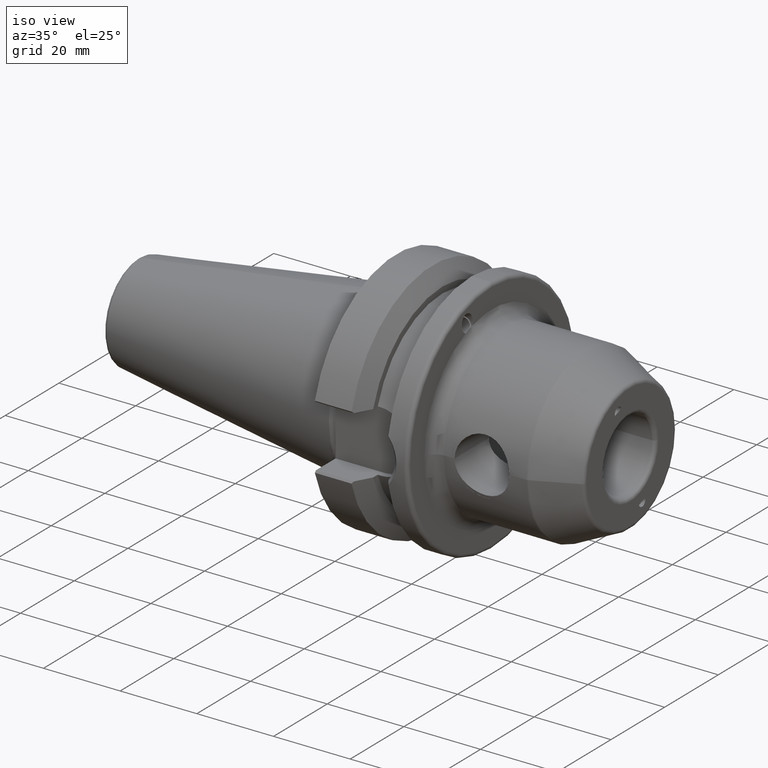
[diagram: clean part render]
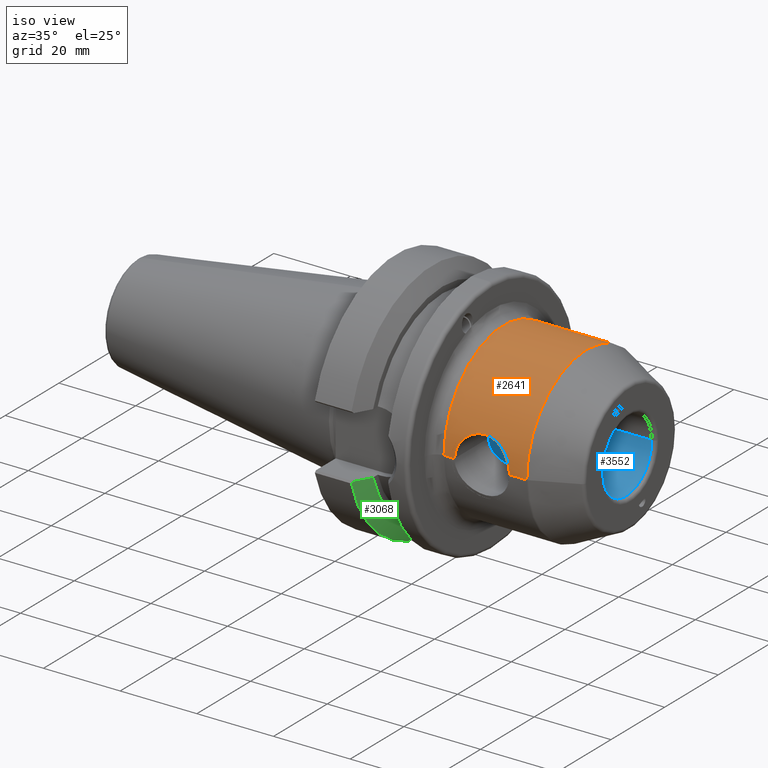
[diagram: same view with three faces highlighted in distinct colors, each labeled with its STEP entity id]
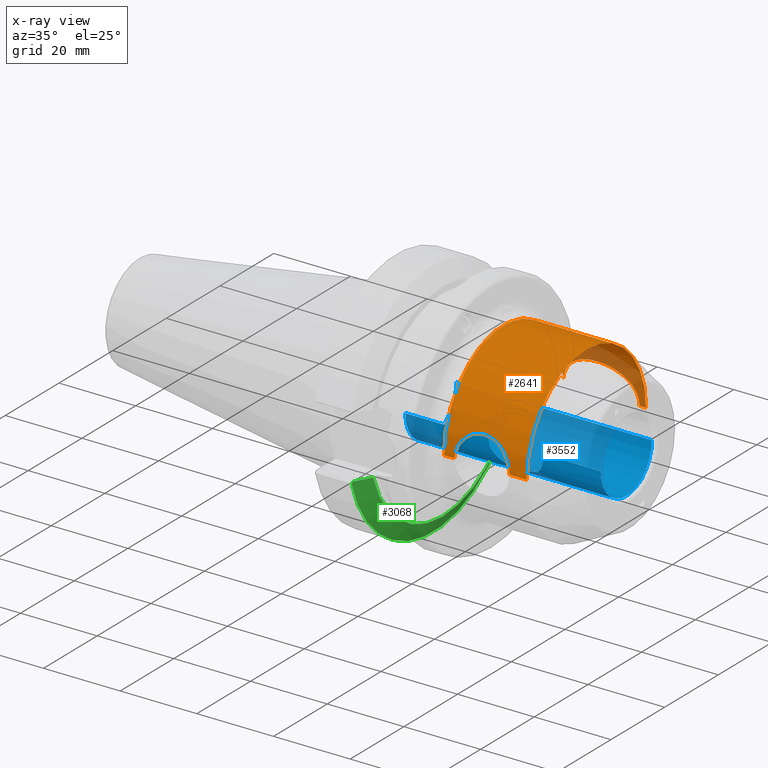
[diagram: x-ray of the same camera — body ghosted, the three highlighted faces saturated]
A machine part, iso view with three faces highlighted in distinct colors.
The next image is the same camera in x-ray (body ghosted, the three faces saturated) — at least one of them is partly hidden behind the body in this view.
Their STEP definitions:

[orange] entity #2641 — the highlighted cylindrical surface (partial cylindrical patch) has radius 22.225 mm, axis along (-1, 0, 0).
#307=CARTESIAN_POINT('',(4.99E1,2.2225E1,0.E0));
#308=CARTESIAN_POINT('',(4.99E1,2.2225E1,3.630115564108E-1));
#309=CARTESIAN_POINT('',(4.985008308141E1,2.220810348539E1,1.095261380611E0));
#310=CARTESIAN_POINT('',(4.957885241600E1,2.211801236820E1,2.276243612510E0));
#311=CARTESIAN_POINT('',(4.915081259436E1,2.198102849458E1,3.336138704336E0));
#312=CARTESIAN_POINT('',(4.858722862228E1,2.181015249122E1,4.309055189650E0));
#313=CARTESIAN_POINT('',(4.789596621731E1,2.161519115039E1,5.194800210705E0));
#314=CARTESIAN_POINT('',(4.707038845970E1,2.140318550125E1,6.005949479731E0));
#315=CARTESIAN_POINT('',(4.609775756960E1,2.118315299958E1,6.737144840002E0));
#316=CARTESIAN_POINT('',(4.504486960430E1,2.098172880978E1,7.336375902990E0));
#317=CARTESIAN_POINT('',(4.393610505537E1,2.080921122913E1,7.809919920117E0));
#318=CARTESIAN_POINT('',(4.268043976762E1,2.066311083412E1,8.187042703047E0));
#319=CARTESIAN_POINT('',(4.121064035787E1,2.055616612386E1,8.450098904092E0));
#320=CARTESIAN_POINT('',(3.943147990575E1,2.052970486322E1,8.513532788728E0));
#321=CARTESIAN_POINT('',(3.783727622736E1,2.060183454173E1,8.339138451317E0));
#322=CARTESIAN_POINT('',(3.638508446645E1,2.074006335651E1,7.991680881893E0));
#323=CARTESIAN_POINT('',(3.507856306305E1,2.092512457864E1,7.497447659871E0));
#324=CARTESIAN_POINT('',(3.387359013477E1,2.114661283465E1,6.852489932682E0));
#325=CARTESIAN_POINT('',(3.283264315147E1,2.137809109909E1,6.095457198134E0));
#326=CARTESIAN_POINT('',(3.197652076409E1,2.159562239144E1,5.275682311275E0));
#327=CARTESIAN_POINT('',(3.127396986170E1,2.179226927571E1,4.397407747677E0));
#328=CARTESIAN_POINT('',(3.069885677167E1,2.196552788324E1,3.437351008359E0));
#329=CARTESIAN_POINT('',(3.025512540069E1,2.210691226248E1,2.375959674534E0));
#330=CARTESIAN_POINT('',(3.006524983006E1,2.216979484213E1,1.614844183372E0));
#331=CARTESIAN_POINT('',(3.E1,2.219152649285E1,1.219334620643E0));
#333=CARTESIAN_POINT('',(5.157325667769E1,0.E0,0.E0));
#334=DIRECTION('',(-1.E0,0.E0,0.E0));
#335=DIRECTION('',(0.E0,-1.E0,0.E0));
#336=AXIS2_PLACEMENT_3D('',#333,#334,#335);
#338=CARTESIAN_POINT('',(3.27626E1,-2.2225E1,0.E0));
#339=CARTESIAN_POINT('',(3.27626E1,-2.2225E1,4.466968018885E-1));
#340=CARTESIAN_POINT('',(3.284157082150E1,-2.219935032889E1,1.338483239756E0));
#341=CARTESIAN_POINT('',(3.325966043985E1,-2.206839874779E1,2.747580334973E0));
#342=CARTESIAN_POINT('',(3.392199030136E1,-2.187613401643E1,3.978975734801E0));
#343=CARTESIAN_POINT('',(3.478939749671E1,-2.165260183359E1,5.044764904094E0));
#344=CARTESIAN_POINT('',(3.583977176219E1,-2.142636472118E1,5.922844555021E0));
#345=CARTESIAN_POINT('',(3.707104126383E1,-2.122260888923E1,6.608360030813E0));
#346=CARTESIAN_POINT('',(3.851977771625E1,-2.107655263822E1,7.053817233986E0));
#347=CARTESIAN_POINT('',(3.991911535915E1,-2.103221077188E1,7.182657838593E0));
#348=CARTESIAN_POINT('',(4.133583880822E1,-2.108122553410E1,7.039747735358E0));
#349=CARTESIAN_POINT('',(4.268601439935E1,-2.121843710153E1,6.620865917171E0));
#350=CARTESIAN_POINT('',(4.390997704665E1,-2.141659732197E1,5.957231022532E0));
#351=CARTESIAN_POINT('',(4.496300204710E1,-2.164133431245E1,5.092417510463E0));
#352=CARTESIAN_POINT('',(4.584917639589E1,-2.186800786844E1,4.024621933141E0));
#353=CARTESIAN_POINT('',(4.652948040957E1,-2.206504605201E1,2.776713904560E0));
#354=CARTESIAN_POINT('',(4.695577312882E1,-2.219848932077E1,1.357060600706E0));
#355=CARTESIAN_POINT('',(4.70374E1,-2.2225E1,4.532035747091E-1));
#356=CARTESIAN_POINT('',(4.70374E1,-2.2225E1,0.E0));
#384=DIRECTION('',(-1.E0,0.E0,0.E0));
#385=VECTOR('',#384,2.762599999999E0);
#386=CARTESIAN_POINT('',(3.27626E1,-2.2225E1,0.E0));
#387=LINE('',#386,#385);
#408=DIRECTION('',(-1.E0,0.E0,0.E0));
#409=VECTOR('',#408,4.535856677695E0);
#410=CARTESIAN_POINT('',(5.157325667769E1,-2.2225E1,0.E0));
#411=LINE('',#410,#409);
#417=DIRECTION('',(-1.E0,0.E0,0.E0));
#418=VECTOR('',#417,1.673256677695E0);
#419=CARTESIAN_POINT('',(5.157325667769E1,2.2225E1,0.E0));
#420=LINE('',#419,#418);
#448=CARTESIAN_POINT('',(3.E1,0.E0,0.E0));
#449=DIRECTION('',(-1.E0,0.E0,0.E0));
#450=DIRECTION('',(0.E0,-1.E0,0.E0));
#451=AXIS2_PLACEMENT_3D('',#448,#449,#450);
#2092=CARTESIAN_POINT('',(5.157325667769E1,-2.2225E1,0.E0));
#2093=VERTEX_POINT('',#2092);
#2108=CARTESIAN_POINT('',(5.157325667769E1,2.2225E1,0.E0));
#2109=VERTEX_POINT('',#2108);
#2124=CARTESIAN_POINT('',(3.E1,-2.2225E1,0.E0));
#2125=VERTEX_POINT('',#2124);
#2146=VERTEX_POINT('',#338);
#2147=VERTEX_POINT('',#356);
#2154=VERTEX_POINT('',#307);
#2155=VERTEX_POINT('',#331);
#2621=CARTESIAN_POINT('',(0.E0,0.E0,0.E0));
#2622=DIRECTION('',(-1.E0,0.E0,0.E0));
#2623=DIRECTION('',(0.E0,-1.E0,0.E0));
#2624=AXIS2_PLACEMENT_3D('',#2621,#2622,#2623);
#2625=CYLINDRICAL_SURFACE('',#2624,2.2225E1);
#2627=ORIENTED_EDGE('',*,*,#2626,.F.);
#2629=ORIENTED_EDGE('',*,*,#2628,.F.);
#2631=ORIENTED_EDGE('',*,*,#2630,.F.);
#2633=ORIENTED_EDGE('',*,*,#2632,.T.);
#2634=ORIENTED_EDGE('',*,*,#2609,.F.);
#2636=ORIENTED_EDGE('',*,*,#2635,.T.);
#2638=ORIENTED_EDGE('',*,*,#2637,.T.);
#2639=EDGE_LOOP('',(#2627,#2629,#2631,#2633,#2634,#2636,#2638));
#2640=FACE_OUTER_BOUND('',#2639,.F.);
#2641=ADVANCED_FACE('',(#2640),#2625,.T.);
#332=B_SPLINE_CURVE_WITH_KNOTS('',3,(#307,#308,#309,#310,#311,#312,#313,#314,
#315,#316,#317,#318,#319,#320,#321,#322,#323,#324,#325,#326,#327,#328,#329,#330,
#331),.UNSPECIFIED.,.F.,.F.,(4,1,1,1,1,1,1,1,1,1,1,1,1,1,1,1,1,1,1,1,1,1,4),(
0.E0,4.545454545455E-2,9.090909090909E-2,1.363636363636E-1,1.818181818182E-1,
2.272727272727E-1,2.727272727273E-1,3.181818181818E-1,3.636363636364E-1,
4.090909090909E-1,4.545454545455E-1,5.E-1,5.454545454545E-1,5.909090909091E-1,
6.363636363636E-1,6.818181818182E-1,7.272727272727E-1,7.727272727273E-1,
8.181818181818E-1,8.636363636364E-1,9.090909090909E-1,9.545454545455E-1,1.E0),
.UNSPECIFIED.);
#337=CIRCLE('',#336,2.2225E1);
#357=B_SPLINE_CURVE_WITH_KNOTS('',3,(#338,#339,#340,#341,#342,#343,#344,#345,
#346,#347,#348,#349,#350,#351,#352,#353,#354,#355,#356),.UNSPECIFIED.,.F.,.F.,
(4,1,1,1,1,1,1,1,1,1,1,1,1,1,1,1,4),(0.E0,6.25E-2,1.25E-1,1.875E-1,2.5E-1,
3.125E-1,3.75E-1,4.375E-1,5.E-1,5.625E-1,6.25E-1,6.875E-1,7.5E-1,8.125E-1,
8.75E-1,9.375E-1,1.E0),.UNSPECIFIED.);
#452=CIRCLE('',#451,2.2225E1);
#2609=EDGE_CURVE('',#2146,#2147,#357,.T.);
#2626=EDGE_CURVE('',#2154,#2155,#332,.T.);
#2628=EDGE_CURVE('',#2109,#2154,#420,.T.);
#2630=EDGE_CURVE('',#2093,#2109,#337,.T.);
#2632=EDGE_CURVE('',#2093,#2147,#411,.T.);
#2635=EDGE_CURVE('',#2146,#2125,#387,.T.);
#2637=EDGE_CURVE('',#2125,#2155,#452,.T.);

[blue] entity #3552 — the highlighted cylindrical surface (partial cylindrical patch) has radius 9.525 mm, axis along (-1, 0, 0).
#257=CARTESIAN_POINT('',(4.70374E1,-9.525E0,0.E0));
#267=DIRECTION('',(1.E0,0.E0,0.E0));
#268=VECTOR('',#267,1.49626E1);
#269=CARTESIAN_POINT('',(4.70374E1,-9.525E0,0.E0));
#270=LINE('',#269,#268);
#271=DIRECTION('',(-1.E0,0.E0,0.E0));
#272=VECTOR('',#271,5.1E1);
#273=CARTESIAN_POINT('',(6.2E1,9.525E0,0.E0));
#274=LINE('',#273,#272);
#280=DIRECTION('',(1.E0,0.E0,0.E0));
#281=VECTOR('',#280,2.17626E1);
#282=CARTESIAN_POINT('',(1.1E1,-9.525E0,0.E0));
#283=LINE('',#282,#281);
#292=CARTESIAN_POINT('',(3.27626E1,-9.525E0,0.E0));
#1294=CARTESIAN_POINT('',(6.2E1,0.E0,0.E0));
#1295=DIRECTION('',(1.E0,0.E0,0.E0));
#1296=DIRECTION('',(0.E0,-1.E0,0.E0));
#1297=AXIS2_PLACEMENT_3D('',#1294,#1295,#1296);
#1304=CARTESIAN_POINT('',(3.579604108695E1,-7.525E0,-5.839520528263E0));
#1305=CARTESIAN_POINT('',(3.625710284708E1,-7.427483263276E0,
-5.965183832347E0));
#1306=CARTESIAN_POINT('',(3.714759499650E1,-7.266637252055E0,
-6.160243386278E0));
#1307=CARTESIAN_POINT('',(3.837939784030E1,-7.123462316826E0,
-6.323620470374E0));
#1308=CARTESIAN_POINT('',(3.948873028435E1,-7.065181275222E0,
-6.388169414692E0));
#1309=CARTESIAN_POINT('',(4.054578929572E1,-7.071535402653E0,
-6.381173034018E0));
#1310=CARTESIAN_POINT('',(4.169706816990E1,-7.148607357772E0,
-6.295493939738E0));
#1311=CARTESIAN_POINT('',(4.289352551248E1,-7.306764206635E0,
-6.112666511047E0));
#1312=CARTESIAN_POINT('',(4.363751485574E1,-7.447495353658E0,
-5.939395588363E0));
#1313=CARTESIAN_POINT('',(4.400395891305E1,-7.525E0,-5.839520528263E0));
#1315=CARTESIAN_POINT('',(3.27626E1,-9.525E0,0.E0));
#1316=CARTESIAN_POINT('',(3.27626E1,-9.525E0,-3.842456551466E-1));
#1317=CARTESIAN_POINT('',(3.282218495341E1,-9.480172808902E0,
-1.153232652006E0));
#1318=CARTESIAN_POINT('',(3.312263931551E1,-9.257083809365E0,
-2.342565160190E0));
#1319=CARTESIAN_POINT('',(3.358697753390E1,-8.921321152540E0,
-3.392559846700E0));
#1320=CARTESIAN_POINT('',(3.419416034739E1,-8.500548709237E0,
-4.335086917759E0));
#1321=CARTESIAN_POINT('',(3.492036710430E1,-8.028379696490E0,
-5.151968877669E0));
#1322=CARTESIAN_POINT('',(3.548879394543E1,-7.692565401324E0,
-5.623590189657E0));
#1323=CARTESIAN_POINT('',(3.579604108695E1,-7.525E0,-5.839520528263E0));
#1325=CARTESIAN_POINT('',(1.1E1,0.E0,0.E0));
#1326=DIRECTION('',(-1.E0,0.E0,0.E0));
#1327=DIRECTION('',(0.E0,1.E0,0.E0));
#1328=AXIS2_PLACEMENT_3D('',#1325,#1326,#1327);
#1330=CARTESIAN_POINT('',(4.400395891305E1,-7.525E0,-5.839520528263E0));
#1331=CARTESIAN_POINT('',(4.431088664997E1,-7.692391205526E0,
-5.623814664145E0));
#1332=CARTESIAN_POINT('',(4.487897576685E1,-8.027970042466E0,
-5.152595225867E0));
#1333=CARTESIAN_POINT('',(4.560555480449E1,-8.500350254534E0,
-4.335517056089E0));
#1334=CARTESIAN_POINT('',(4.621301899332E1,-8.921319415430E0,
-3.392585148562E0));
#1335=CARTESIAN_POINT('',(4.667707531364E1,-9.256876782197E0,
-2.343122362394E0));
#1336=CARTESIAN_POINT('',(4.697745514810E1,-9.479903129251E0,
-1.155357391772E0));
#1337=CARTESIAN_POINT('',(4.70374E1,-9.525E0,-3.851698398727E-1));
#1338=CARTESIAN_POINT('',(4.70374E1,-9.525E0,0.E0));
#2078=CARTESIAN_POINT('',(6.2E1,-9.525E0,0.E0));
#2080=VERTEX_POINT('',#2078);
#2094=CARTESIAN_POINT('',(6.2E1,9.525E0,0.E0));
#2096=VERTEX_POINT('',#2094);
#2142=CARTESIAN_POINT('',(1.1E1,-9.525E0,0.E0));
#2143=CARTESIAN_POINT('',(1.1E1,9.525E0,0.E0));
#2144=VERTEX_POINT('',#2142);
#2145=VERTEX_POINT('',#2143);
#2150=VERTEX_POINT('',#257);
#2151=VERTEX_POINT('',#292);
#2152=VERTEX_POINT('',#1304);
#2153=VERTEX_POINT('',#1313);
#3534=CARTESIAN_POINT('',(0.E0,0.E0,0.E0));
#3535=DIRECTION('',(-1.E0,0.E0,0.E0));
#3536=DIRECTION('',(0.E0,-1.E0,0.E0));
#3537=AXIS2_PLACEMENT_3D('',#3534,#3535,#3536);
#3538=CYLINDRICAL_SURFACE('',#3537,9.525E0);
#3540=ORIENTED_EDGE('',*,*,#3539,.F.);
#3542=ORIENTED_EDGE('',*,*,#3541,.F.);
#3543=ORIENTED_EDGE('',*,*,#2586,.F.);
#3544=ORIENTED_EDGE('',*,*,#2565,.F.);
#3545=ORIENTED_EDGE('',*,*,#2583,.F.);
#3546=ORIENTED_EDGE('',*,*,#3527,.F.);
#3547=ORIENTED_EDGE('',*,*,#2579,.F.);
#3549=ORIENTED_EDGE('',*,*,#3548,.F.);
#3550=EDGE_LOOP('',(#3540,#3542,#3543,#3544,#3545,#3546,#3547,#3549));
#3551=FACE_OUTER_BOUND('',#3550,.F.);
#3552=ADVANCED_FACE('',(#3551),#3538,.F.);
#1298=CIRCLE('',#1297,9.525E0);
#1314=B_SPLINE_CURVE_WITH_KNOTS('',3,(#1304,#1305,#1306,#1307,#1308,#1309,#1310,
#1311,#1312,#1313),.UNSPECIFIED.,.F.,.F.,(4,1,1,1,1,1,1,4),(0.E0,
1.428571428571E-1,2.857142857143E-1,4.285714285714E-1,5.714285714286E-1,
7.142857142857E-1,8.571428571429E-1,1.E0),.UNSPECIFIED.);
#1324=B_SPLINE_CURVE_WITH_KNOTS('',3,(#1315,#1316,#1317,#1318,#1319,#1320,#1321,
#1322,#1323),.UNSPECIFIED.,.F.,.F.,(4,1,1,1,1,1,4),(0.E0,1.666666666667E-1,
3.333333333333E-1,5.E-1,6.666666666667E-1,8.333333333333E-1,1.E0),
.UNSPECIFIED.);
#1329=CIRCLE('',#1328,9.525E0);
#1339=B_SPLINE_CURVE_WITH_KNOTS('',3,(#1330,#1331,#1332,#1333,#1334,#1335,#1336,
#1337,#1338),.UNSPECIFIED.,.F.,.F.,(4,1,1,1,1,1,4),(0.E0,1.666666666667E-1,
3.333333333333E-1,5.E-1,6.666666666667E-1,8.333333333333E-1,1.E0),
.UNSPECIFIED.);
#2565=EDGE_CURVE('',#2145,#2144,#1329,.T.);
#2579=EDGE_CURVE('',#2150,#2080,#270,.T.);
#2583=EDGE_CURVE('',#2096,#2145,#274,.T.);
#2586=EDGE_CURVE('',#2144,#2151,#283,.T.);
#3527=EDGE_CURVE('',#2080,#2096,#1298,.T.);
#3539=EDGE_CURVE('',#2152,#2153,#1314,.T.);
#3541=EDGE_CURVE('',#2151,#2152,#1324,.T.);
#3548=EDGE_CURVE('',#2153,#2150,#1339,.T.);

[green] entity #3068 — the highlighted conical surface has half-angle 60 deg.
#843=CARTESIAN_POINT('',(1.41E1,-2.589378524176E1,-8.05E0));
#844=CARTESIAN_POINT('',(1.386450341249E1,-2.632093406585E1,-8.05E0));
#845=CARTESIAN_POINT('',(1.338588596161E1,-2.718719807101E1,-8.05E0));
#846=CARTESIAN_POINT('',(1.264535505638E1,-2.852228716965E1,-8.05E0));
#847=CARTESIAN_POINT('',(1.213636940407E1,-2.943672353446E1,-8.05E0));
#848=CARTESIAN_POINT('',(1.187809346105E1,-2.99E1,-8.05E0));
#850=CARTESIAN_POINT('',(1.41E1,0.E0,0.E0));
#851=DIRECTION('',(1.E0,0.E0,0.E0));
#852=DIRECTION('',(0.E0,-9.549178917964E-1,-2.968700387830E-1));
#853=AXIS2_PLACEMENT_3D('',#850,#851,#852);
#855=CARTESIAN_POINT('',(1.187809346105E1,2.99E1,-8.05E0));
#856=CARTESIAN_POINT('',(1.213608053432E1,2.943724168785E1,-8.05E0));
#857=CARTESIAN_POINT('',(1.264468269184E1,2.852349654788E1,-8.05E0));
#858=CARTESIAN_POINT('',(1.338523678300E1,2.718837129527E1,-8.05E0));
#859=CARTESIAN_POINT('',(1.386422607045E1,2.632143711487E1,-8.05E0));
#860=CARTESIAN_POINT('',(1.41E1,2.589378524176E1,-8.05E0));
#862=CARTESIAN_POINT('',(1.187809346105E1,2.99E1,-8.05E0));
#863=CARTESIAN_POINT('',(1.184412243022E1,2.994800919416E1,-8.098009194156E0));
#864=CARTESIAN_POINT('',(1.177593456126E1,3.004428424075E1,-8.194284240747E0));
#865=CARTESIAN_POINT('',(1.167291601044E1,3.018946614020E1,-8.339466140200E0));
#866=CARTESIAN_POINT('',(1.160374493301E1,3.028676841650E1,-8.436768416504E0));
#867=CARTESIAN_POINT('',(1.15690365E1,3.033554803451E1,-8.485548034509E0));
#869=CARTESIAN_POINT('',(1.15690365E1,0.E0,0.E0));
#870=DIRECTION('',(-1.E0,0.E0,0.E0));
#871=DIRECTION('',(0.E0,9.630332709368E-1,-2.693824772860E-1));
#872=AXIS2_PLACEMENT_3D('',#869,#870,#871);
#874=CARTESIAN_POINT('',(1.15690365E1,-3.033554803451E1,-8.485548034509E0));
#875=CARTESIAN_POINT('',(1.162109299730E1,-3.026238725388E1,-8.412387253883E0));
#876=CARTESIAN_POINT('',(1.172465915984E1,-3.011663519535E1,-8.266635195345E0));
#877=CARTESIAN_POINT('',(1.182713113718E1,-2.997202195639E1,-8.122021956386E0));
#878=CARTESIAN_POINT('',(1.187809346105E1,-2.99E1,-8.05E0));
#1873=CARTESIAN_POINT('',(1.41E1,2.589378524176E1,-8.05E0));
#1875=VERTEX_POINT('',#1873);
#1969=VERTEX_POINT('',#862);
#1970=VERTEX_POINT('',#867);
#1985=CARTESIAN_POINT('',(1.15690365E1,-3.033554803451E1,-8.485548034509E0));
#1987=VERTEX_POINT('',#1985);
#1999=VERTEX_POINT('',#843);
#2000=VERTEX_POINT('',#848);
#3052=CARTESIAN_POINT('',(1.283451825E1,0.E0,0.E0));
#3053=DIRECTION('',(-1.E0,0.E0,0.E0));
#3054=DIRECTION('',(0.E0,0.E0,-1.E0));
#3055=AXIS2_PLACEMENT_3D('',#3052,#3053,#3054);
#3056=CONICAL_SURFACE('',#3055,2.930812131295E1,6.E1);
#3057=ORIENTED_EDGE('',*,*,#2863,.F.);
#3059=ORIENTED_EDGE('',*,*,#3058,.T.);
#3061=ORIENTED_EDGE('',*,*,#3060,.F.);
#3063=ORIENTED_EDGE('',*,*,#3062,.T.);
#3064=ORIENTED_EDGE('',*,*,#2979,.T.);
#3065=ORIENTED_EDGE('',*,*,#3025,.T.);
#3066=EDGE_LOOP('',(#3057,#3059,#3061,#3063,#3064,#3065));
#3067=FACE_OUTER_BOUND('',#3066,.F.);
#3068=ADVANCED_FACE('',(#3067),#3056,.T.);
#849=B_SPLINE_CURVE_WITH_KNOTS('',3,(#843,#844,#845,#846,#847,#848),
.UNSPECIFIED.,.F.,.F.,(4,1,1,4),(0.E0,3.333333333333E-1,6.666666666667E-1,1.E0),
.UNSPECIFIED.);
#854=CIRCLE('',#853,2.711624262590E1);
#861=B_SPLINE_CURVE_WITH_KNOTS('',3,(#855,#856,#857,#858,#859,#860),
.UNSPECIFIED.,.F.,.F.,(4,1,1,4),(0.E0,3.333333333333E-1,6.666666666667E-1,1.E0),
.UNSPECIFIED.);
#868=B_SPLINE_CURVE_WITH_KNOTS('',3,(#862,#863,#864,#865,#866,#867),
.UNSPECIFIED.,.F.,.F.,(4,1,1,4),(0.E0,3.333333333333E-1,6.666666666667E-1,1.E0),
.UNSPECIFIED.);
#873=CIRCLE('',#872,3.15E1);
#879=B_SPLINE_CURVE_WITH_KNOTS('',3,(#874,#875,#876,#877,#878),.UNSPECIFIED.,
.F.,.F.,(4,1,4),(0.E0,5.E-1,1.E0),.UNSPECIFIED.);
#2863=EDGE_CURVE('',#1999,#2000,#849,.T.);
#2979=EDGE_CURVE('',#1970,#1987,#873,.T.);
#3025=EDGE_CURVE('',#1987,#2000,#879,.T.);
#3058=EDGE_CURVE('',#1999,#1875,#854,.T.);
#3060=EDGE_CURVE('',#1969,#1875,#861,.T.);
#3062=EDGE_CURVE('',#1969,#1970,#868,.T.);